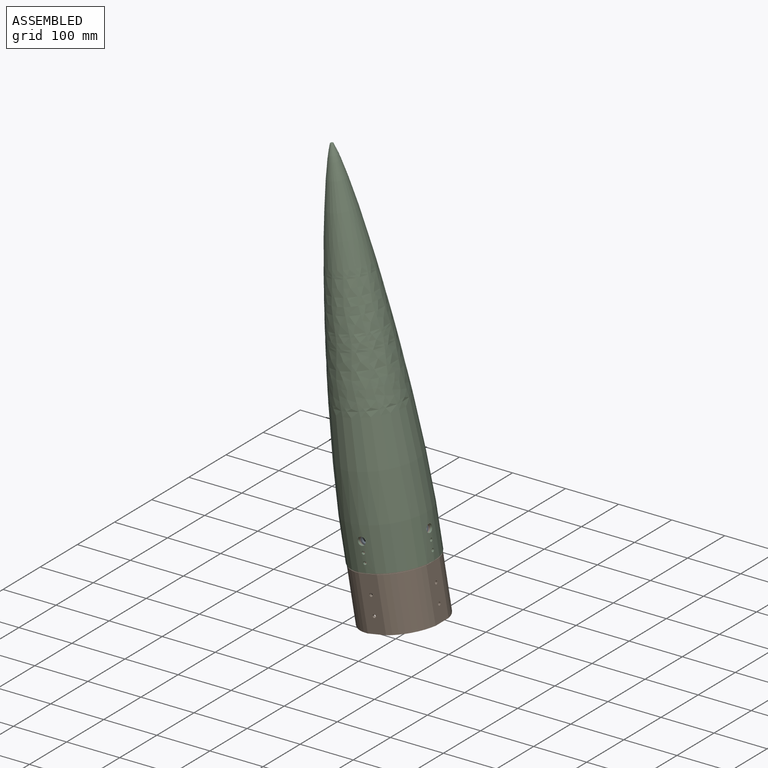
[diagram: assembled view]
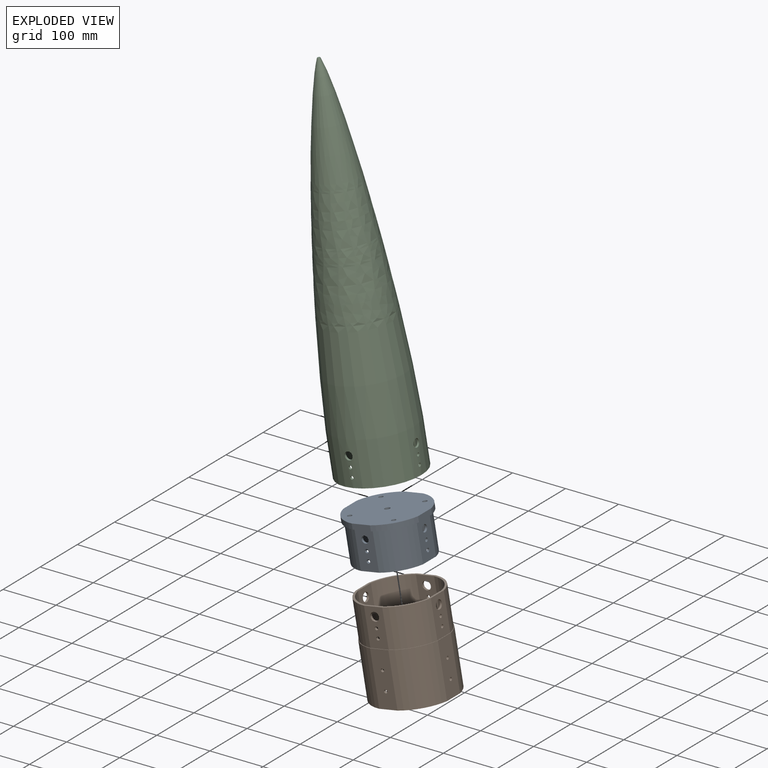
[diagram: exploded view]
GUIDED TOUR — MATED ASSEMBLY (Onshape document a5609bb99c2f86ce3860eae0, AutoMate assembly a5609bb99c2f86ce3860eae0_748a4be2e3e44bce40b3e78f_60d7f2d63493310a3a7e5489_default)

This assembly has 3 components, labeled P0..P2 below (a component is one placed occurrence of a part; the same part can appear more than once), held together by 2 mates. A mate is a constraint between two components; its type names the relative motion it leaves free:
  SLIDER — leaves translation along the listed axis free.
Axis/direction vectors are unit vectors and 'through' points are millimeter coordinates, both in the assembly's world frame.

MATES
  1. SLIDER "Slider 1": P0 <-> P1, axis (-0.174, 0.000, 0.985) through (117.21, 10.17, -79.64) mm
  2. SLIDER "Slider 2": P2 <-> P0, axis (0.174, 0.000, -0.985) through (130.97, 10.17, -157.64) mm

ASSEMBLY ORDER
  1. P0 — the base component [order heuristic]
  2. P1 [order heuristic]
  3. P2 [order heuristic]
Order-tag legend:
  [order heuristic] — this assembly is geometrically interlocked (no collision-free removal order exists), so components are listed in mate-graph order; insertion feasibility is not verified.

Of the 3 components, 2 carry the full construction recipe — the FeatureScript program that regenerates the part's solid from scratch; the rest are supplied as boundary geometry only.
Each toured component is shown spotlighted twice — in the assembled view, then in the exploded view, where a leader line traces a displaced component back to its assembled socket (saturated green if recipe-attached, orange if geometry-only; every other component desaturated gray) — followed by its recipe or geometry summary and the mates that hold it.
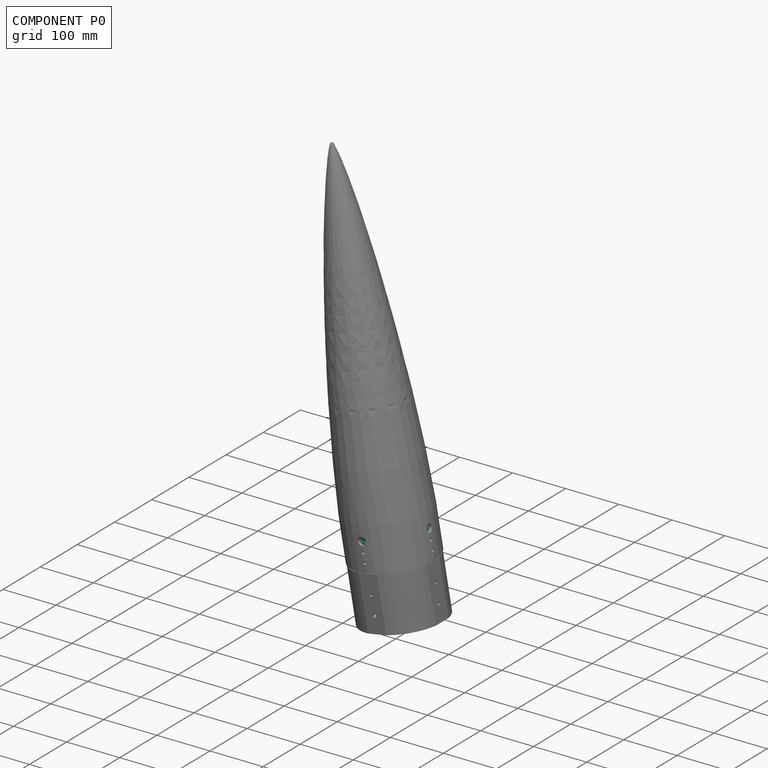
[diagram: component P0 — assembled]
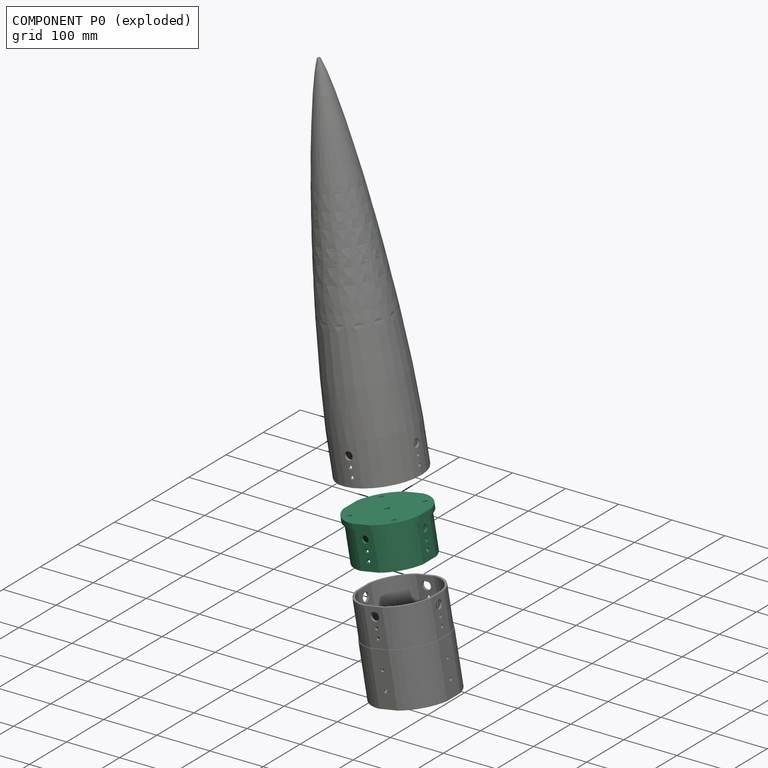
[diagram: component P0 — exploded]
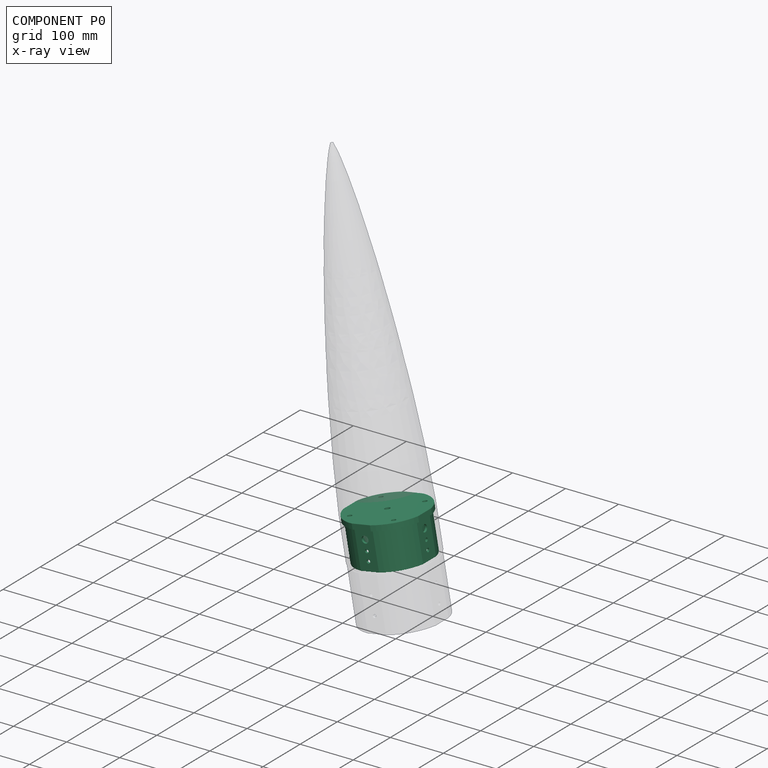
[diagram: component P0 — x-ray view]
COMPONENT P0 — recipe-attached (CADFS 00817923, mesh-verified: the recipe's output STEP matches this component's geometry to below the mesh-comparison resolution (tessellation chordal tolerance ~0.326 mm)).
Held by: SLIDER mate "Slider 1" to P1; SLIDER mate "Slider 2" to P2.
Construction recipe (FeatureScript — the CAD program that rebuilds this solid; sketch coordinates are in the units given by the * unit suffixes, e.g. mm):

FeatureScript 1511;
import(path : "onshape/std/geometry.fs", version : "1511.0");
import(path : "onshape/std/common.fs", version : "1511.0");
const mm = millimeter;
const VERTEX = EntityType.VERTEX;
const EDGE = EntityType.EDGE;
const FACE = EntityType.FACE;
const BODY = EntityType.BODY;
function v(x, y){return vector(x, y);}
function OD(order){return orderDisambiguation(order);}
function OSD(set){return originalSetDisambiguation(set);}
function TD(topology){return topologyDisambiguation(topology);}
function TDD(query){return trueDependencyDisambiguation(query);}
function sQuery(a, b, c) {return sketchEntityQuery(a, b, c);}

annotation { "Feature Type Name" : "Feature", "Feature Type Description" : "" }
export const myFeature = defineFeature(function(context is Context, id is Id, definition is map)
    precondition{}
    {
        {
            var Q0;
            Q0=qCreatedBy(makeId("Top.planeOp"),FACE);
            var sketch = newSketch(context, id + "F0", { "sketchPlane" : qUnion([Q0])});
            skArc(sketch, "E0", {"start": v(-17.5, 66.74) * mm, "mid": v(-48.8, 48.8) * mm, "end": v(-66.74, 17.5) * mm});
            skArc(sketch, "E1", {"start": v(-66.74, -17.5) * mm, "mid": v(-48.8, -48.8) * mm, "end": v(-17.5, -66.74) * mm});
            skArc(sketch, "E2", {"start": v(17.5, -66.74) * mm, "mid": v(48.8, -48.8) * mm, "end": v(66.74, -17.5) * mm});
            skArc(sketch, "E3", {"start": v(66.74, 17.5) * mm, "mid": v(48.8, 48.8) * mm, "end": v(17.5, 66.74) * mm});
            skLineSegment(sketch, "E4", {"start": v(-66.74, 17.5) * mm, "end": v(-66.74, -17.5) * mm});
            skLineSegment(sketch, "E5", {"start": v(-17.5, 66.74) * mm, "end": v(17.5, 66.74) * mm});
            skLineSegment(sketch, "E6", {"start": v(66.74, 17.5) * mm, "end": v(66.74, -17.5) * mm});
            skLineSegment(sketch, "E7", {"start": v(-17.5, -66.74) * mm, "end": v(17.5, -66.74) * mm});
            skArc(sketch, "E8", {"start": v(-17.5, 62.6) * mm, "mid": v(-45.96, 45.96) * mm, "end": v(-62.6, 17.5) * mm});
            skArc(sketch, "E9", {"start": v(-62.6, -17.5) * mm, "mid": v(-45.96, -45.96) * mm, "end": v(-17.5, -62.6) * mm});
            skArc(sketch, "E10", {"start": v(17.5, -62.6) * mm, "mid": v(45.96, -45.96) * mm, "end": v(62.6, -17.5) * mm});
            skArc(sketch, "E11", {"start": v(62.6, 17.5) * mm, "mid": v(45.96, 45.96) * mm, "end": v(17.5, 62.6) * mm});
            skLineSegment(sketch, "E12", {"start": v(-17.5, 62.6) * mm, "end": v(17.5, 62.6) * mm});
            skLineSegment(sketch, "E13", {"start": v(-62.6, 17.5) * mm, "end": v(-62.6, -17.5) * mm});
            skLineSegment(sketch, "E14", {"start": v(-17.5, -62.6) * mm, "end": v(17.5, -62.6) * mm});
            skLineSegment(sketch, "E15", {"start": v(62.6, -17.5) * mm, "end": v(62.6, 17.5) * mm});
            skSolve(sketch);
        }
        {
            var Q0;
            Q0 = qSketchRegion(id + "F0", true);
            extrude(context, id + "F1", {"entities" : qUnion([Q0]), "depth" : 70 * mm, "offsetDistance" : 25 * mm});
        }
        {
            var Q0;
            Q0=makeQuery(id+"F1.opExtrude","CAP_FACE",FACE,{"disambiguationData":[OSD([sQuery(id+"F0.wireOp",EDGE,"E0"),sQuery(id+"F0.wireOp",EDGE,"E1"),sQuery(id+"F0.wireOp",EDGE,"E2"),sQuery(id+"F0.wireOp",EDGE,"E3"),sQuery(id+"F0.wireOp",EDGE,"E4"),sQuery(id+"F0.wireOp",EDGE,"E5"),sQuery(id+"F0.wireOp",EDGE,"E6"),sQuery(id+"F0.wireOp",EDGE,"E7"),sQuery(id+"F0.wireOp",EDGE,"E8"),sQuery(id+"F0.wireOp",EDGE,"E9"),sQuery(id+"F0.wireOp",EDGE,"E10"),sQuery(id+"F0.wireOp",EDGE,"E11"),sQuery(id+"F0.wireOp",EDGE,"E12"),sQuery(id+"F0.wireOp",EDGE,"E13"),sQuery(id+"F0.wireOp",EDGE,"E14"),sQuery(id+"F0.wireOp",EDGE,"E15")])],"isStart":false});
            var sketch = newSketch(context, id + "F2", { "sketchPlane" : qUnion([Q0])});
            skArc(sketch, "E16", {"start": v(-17.5, 71.39) * mm, "mid": v(-51.97, 51.97) * mm, "end": v(-71.39, 17.5) * mm});
            skArc(sketch, "E17", {"start": v(-71.39, -17.5) * mm, "mid": v(-51.97, -51.97) * mm, "end": v(-17.5, -71.39) * mm});
            skArc(sketch, "E18", {"start": v(17.5, -71.39) * mm, "mid": v(51.97, -51.97) * mm, "end": v(71.39, -17.5) * mm});
            skArc(sketch, "E19", {"start": v(71.39, 17.5) * mm, "mid": v(51.97, 51.97) * mm, "end": v(17.5, 71.39) * mm});
            skLineSegment(sketch, "E20", {"start": v(-71.39, 17.5) * mm, "end": v(-71.39, -17.5) * mm});
            skLineSegment(sketch, "E21", {"start": v(-17.5, 71.39) * mm, "end": v(17.5, 71.39) * mm});
            skLineSegment(sketch, "E22", {"start": v(71.39, 17.5) * mm, "end": v(71.39, -17.5) * mm});
            skLineSegment(sketch, "E23", {"start": v(-17.5, -71.39) * mm, "end": v(17.5, -71.39) * mm});
            skSolve(sketch);
        }
        {
            var Q0;
            Q0 = qSketchRegion(id + "F2", true);
            extrude(context, id + "F3", {"entities" : qUnion([Q0]), "operationType" : NewBodyOperationType.ADD, "depth" : 10 * mm, "offsetDistance" : 25 * mm});
        }
        {
            var Q0;
            Q0=makeQuery(id+"F1.opExtrude","SWEPT_FACE",FACE,{"disambiguationData":[OSD([sQuery(id+"F0.wireOp",EDGE,"E7")])]});
            var sketch = newSketch(context, id + "F4", { "sketchPlane" : qUnion([Q0])});
            skCircle(sketch, "E24", {"center": v(0, 53) * mm, "radius": 6.5 * mm});
            skCircle(sketch, "E25", {"center": v(0, 34) * mm, "radius": 3.35 * mm});
            skCircle(sketch, "E26", {"center": v(0, 17) * mm, "radius": 3.35 * mm});
            skSolve(sketch);
        }
        {
            var Q0;
            Q0 = qSketchRegion(id + "F4", true);
            extrude(context, id + "F5", {"entities" : qUnion([Q0]), "operationType" : NewBodyOperationType.REMOVE, "endBound" : BoundingType.UP_TO_NEXT, "oppositeDirection" : true, "depth" : 25 * mm, "offsetDistance" : 25 * mm});
        }
        {
            var Q0;
            Q0=makeQuery(id+"F1.opExtrude","SWEPT_FACE",FACE,{"disambiguationData":[OSD([sQuery(id+"F0.wireOp",EDGE,"E6")])]});
            var sketch = newSketch(context, id + "F6", { "sketchPlane" : qUnion([Q0])});
            skCircle(sketch, "E27", {"center": v(0, 53) * mm, "radius": 6.5 * mm});
            skCircle(sketch, "E28", {"center": v(0, 34) * mm, "radius": 3.35 * mm});
            skCircle(sketch, "E29", {"center": v(0, 17) * mm, "radius": 3.35 * mm});
            skSolve(sketch);
        }
        {
            var Q0;
            Q0 = qSketchRegion(id + "F6", true);
            extrude(context, id + "F7", {"entities" : qUnion([Q0]), "operationType" : NewBodyOperationType.REMOVE, "endBound" : BoundingType.UP_TO_NEXT, "oppositeDirection" : true, "depth" : 25 * mm, "offsetDistance" : 25 * mm});
        }
        {
            var Q0;
            Q0=makeQuery(id+"F1.opExtrude","SWEPT_FACE",FACE,{"disambiguationData":[OSD([sQuery(id+"F0.wireOp",EDGE,"E5")])]});
            var sketch = newSketch(context, id + "F8", { "sketchPlane" : qUnion([Q0])});
            skCircle(sketch, "E30", {"center": v(0, 53) * mm, "radius": 6.5 * mm});
            skCircle(sketch, "E31", {"center": v(0, 34) * mm, "radius": 3.35 * mm});
            skCircle(sketch, "E32", {"center": v(0, 17) * mm, "radius": 3.35 * mm});
            skSolve(sketch);
        }
        {
            var Q0;
            Q0 = qSketchRegion(id + "F8", true);
            extrude(context, id + "F9", {"entities" : qUnion([Q0]), "operationType" : NewBodyOperationType.REMOVE, "endBound" : BoundingType.UP_TO_NEXT, "oppositeDirection" : true, "depth" : 25 * mm, "offsetDistance" : 25 * mm});
        }
        {
            var Q0;
            Q0=makeQuery(id+"F1.opExtrude","SWEPT_FACE",FACE,{"disambiguationData":[OSD([sQuery(id+"F0.wireOp",EDGE,"E4")])]});
            var sketch = newSketch(context, id + "F10", { "sketchPlane" : qUnion([Q0])});
            skCircle(sketch, "E33", {"center": v(0, 53) * mm, "radius": 6.5 * mm});
            skCircle(sketch, "E34", {"center": v(0, 34) * mm, "radius": 3.35 * mm});
            skCircle(sketch, "E35", {"center": v(0, 17) * mm, "radius": 3.35 * mm});
            skSolve(sketch);
        }
        {
            var Q0;
            Q0 = qSketchRegion(id + "F10", true);
            extrude(context, id + "F11", {"entities" : qUnion([Q0]), "operationType" : NewBodyOperationType.REMOVE, "endBound" : BoundingType.UP_TO_NEXT, "oppositeDirection" : true, "depth" : 25 * mm, "offsetDistance" : 25 * mm});
        }
        {
            var Q0;
            Q0=makeQuery(id+"F3.opExtrude","CAP_FACE",FACE,{"disambiguationData":[OSD([sQuery(id+"F2.wireOp",EDGE,"E16"),sQuery(id+"F2.wireOp",EDGE,"E17"),sQuery(id+"F2.wireOp",EDGE,"E18"),sQuery(id+"F2.wireOp",EDGE,"E19"),sQuery(id+"F2.wireOp",EDGE,"E20"),sQuery(id+"F2.wireOp",EDGE,"E21"),sQuery(id+"F2.wireOp",EDGE,"E22"),sQuery(id+"F2.wireOp",EDGE,"E23")])],"isStart":false});
            var sketch = newSketch(context, id + "F12", { "sketchPlane" : qUnion([Q0])});
            skCircle(sketch, "E36", {"center": v(0, 0) * mm, "radius": 5 * mm});
            skCircle(sketch, "E37", {"center": v(-42, 42) * mm, "radius": 4.1 * mm});
            skCircle(sketch, "E38", {"center": v(42, 42) * mm, "radius": 4.1 * mm});
            skCircle(sketch, "E39", {"center": v(42, -42) * mm, "radius": 4.1 * mm});
            skCircle(sketch, "E40", {"center": v(-42, -42) * mm, "radius": 4.1 * mm});
            skSolve(sketch);
        }
        {
            var Q0;
            Q0 = qSketchRegion(id + "F12", true);
            var Q1;
            Q1=makeQuery(id+"F3.boolean.opBoolean","SPLIT",FACE,{"disambiguationData":[TD([makeQuery(id+"F1.opExtrude","SWEPT_FACE",FACE,{"disambiguationData":[OSD([sQuery(id+"F0.wireOp",EDGE,"E8")])]})])],"derivedFrom":makeQuery(id+"F3.opExtrude","CAP_FACE",FACE,{"disambiguationData":[OSD([sQuery(id+"F2.wireOp",EDGE,"E16"),sQuery(id+"F2.wireOp",EDGE,"E17"),sQuery(id+"F2.wireOp",EDGE,"E18"),sQuery(id+"F2.wireOp",EDGE,"E19"),sQuery(id+"F2.wireOp",EDGE,"E20"),sQuery(id+"F2.wireOp",EDGE,"E21"),sQuery(id+"F2.wireOp",EDGE,"E22"),sQuery(id+"F2.wireOp",EDGE,"E23")])],"isStart":true})});
            extrude(context, id + "F13", {"entities" : qUnion([Q0]), "operationType" : NewBodyOperationType.REMOVE, "endBound" : BoundingType.UP_TO_SURFACE, "oppositeDirection" : true, "depth" : 25 * mm, "endBoundEntityFace" : qUnion([Q1]), "offsetDistance" : 25 * mm});
        }
    });
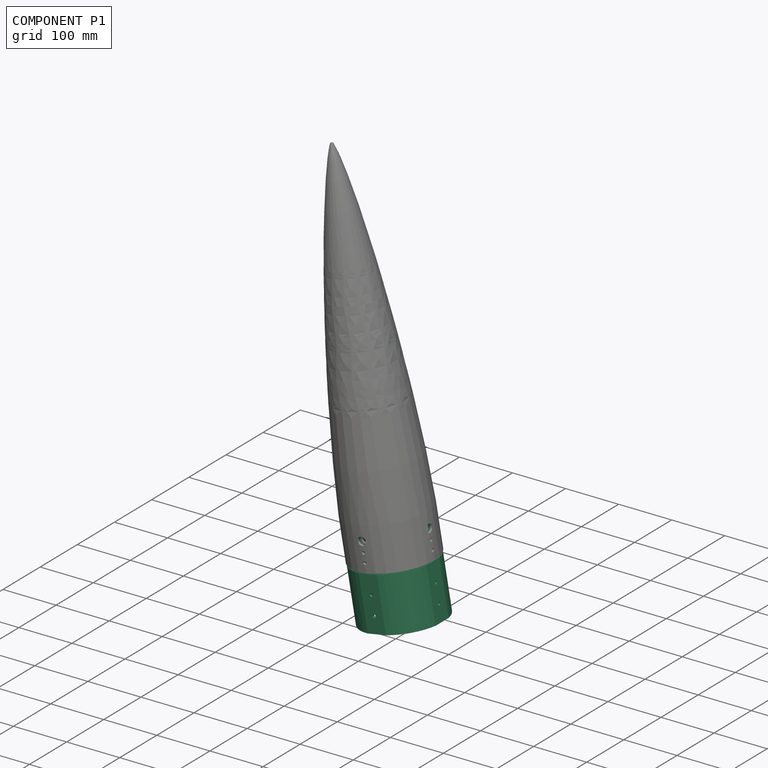
[diagram: component P1 — assembled]
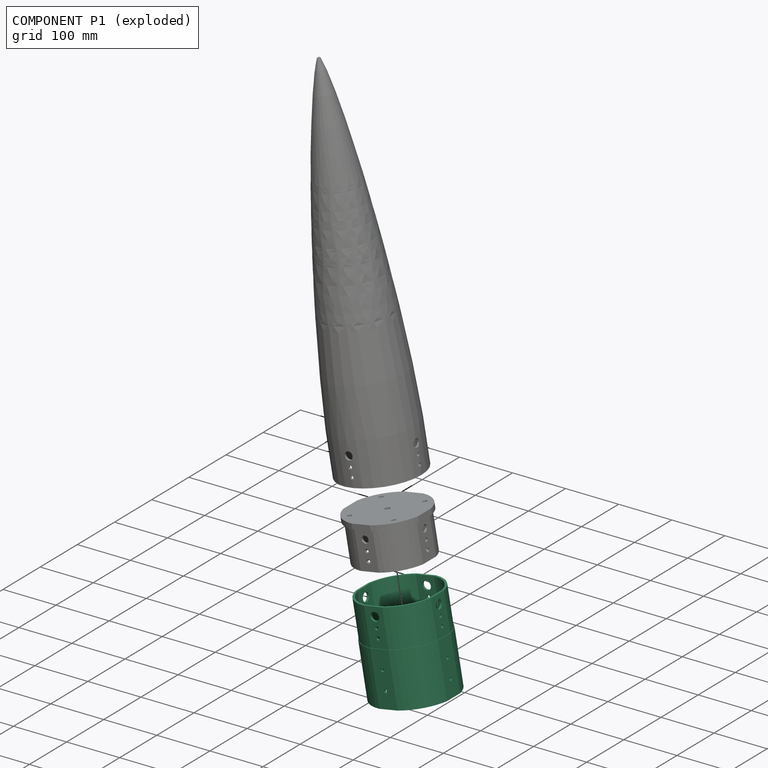
[diagram: component P1 — exploded]
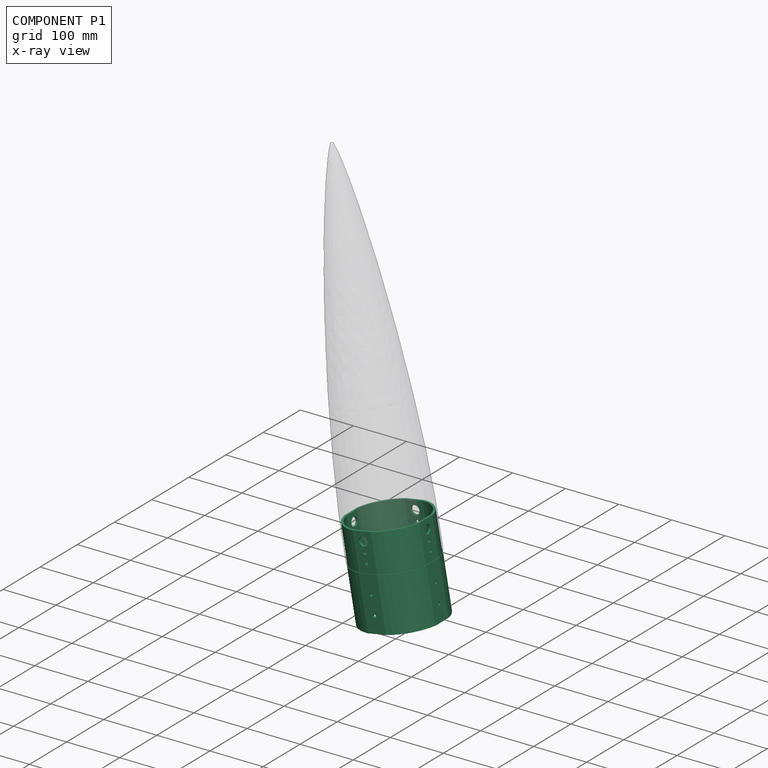
[diagram: component P1 — x-ray view]
COMPONENT P1 — recipe-attached (CADFS 00811272, mesh-verified: the recipe's output STEP matches this component's geometry to below the mesh-comparison resolution (tessellation chordal tolerance ~0.401 mm)).
Held by: SLIDER mate "Slider 1" to P0.
Construction recipe (FeatureScript — the CAD program that rebuilds this solid; sketch coordinates are in the units given by the * unit suffixes, e.g. mm):

FeatureScript 1511;
import(path : "onshape/std/geometry.fs", version : "1511.0");
import(path : "onshape/std/common.fs", version : "1511.0");
const mm = millimeter;
const VERTEX = EntityType.VERTEX;
const EDGE = EntityType.EDGE;
const FACE = EntityType.FACE;
const BODY = EntityType.BODY;
function v(x, y){return vector(x, y);}
function OD(order){return orderDisambiguation(order);}
function OSD(set){return originalSetDisambiguation(set);}
function TD(topology){return topologyDisambiguation(topology);}
function TDD(query){return trueDependencyDisambiguation(query);}
function sQuery(a, b, c) {return sketchEntityQuery(a, b, c);}

annotation { "Feature Type Name" : "Feature", "Feature Type Description" : "" }
export const myFeature = defineFeature(function(context is Context, id is Id, definition is map)
    precondition{}
    {
        {
            var Q0;
            Q0=qCreatedBy(makeId("Top.planeOp"),FACE);
            var sketch = newSketch(context, id + "F0", { "sketchPlane" : qUnion([Q0])});
            skArc(sketch, "E0", {"start": v(-17.5, 72.93) * mm, "mid": v(-53.03, 53.03) * mm, "end": v(-72.93, 17.5) * mm});
            skArc(sketch, "E1", {"start": v(-72.93, -17.5) * mm, "mid": v(-53.03, -53.03) * mm, "end": v(-17.5, -72.93) * mm});
            skArc(sketch, "E2", {"start": v(17.5, -72.93) * mm, "mid": v(53.03, -53.03) * mm, "end": v(72.93, -17.5) * mm});
            skArc(sketch, "E3", {"start": v(72.93, 17.5) * mm, "mid": v(53.03, 53.03) * mm, "end": v(17.5, 72.93) * mm});
            skLineSegment(sketch, "E4", {"start": v(-72.93, 17.5) * mm, "end": v(-72.93, -17.5) * mm});
            skLineSegment(sketch, "E5", {"start": v(-17.5, 72.93) * mm, "end": v(17.5, 72.93) * mm});
            skLineSegment(sketch, "E6", {"start": v(72.93, 17.5) * mm, "end": v(72.93, -17.5) * mm});
            skLineSegment(sketch, "E7", {"start": v(-17.5, -72.93) * mm, "end": v(17.5, -72.93) * mm});
            skArc(sketch, "E8", {"start": v(-17.5, 67.78) * mm, "mid": v(-49.5, 49.5) * mm, "end": v(-67.78, 17.5) * mm});
            skArc(sketch, "E9", {"start": v(-67.78, -17.5) * mm, "mid": v(-49.5, -49.5) * mm, "end": v(-17.5, -67.78) * mm});
            skArc(sketch, "E10", {"start": v(17.5, -67.78) * mm, "mid": v(49.5, -49.5) * mm, "end": v(67.78, -17.5) * mm});
            skArc(sketch, "E11", {"start": v(67.78, 17.5) * mm, "mid": v(49.5, 49.5) * mm, "end": v(17.5, 67.78) * mm});
            skLineSegment(sketch, "E12", {"start": v(-17.5, 67.78) * mm, "end": v(17.5, 67.78) * mm});
            skLineSegment(sketch, "E13", {"start": v(-67.78, 17.5) * mm, "end": v(-67.78, -17.5) * mm});
            skLineSegment(sketch, "E14", {"start": v(-17.5, -67.78) * mm, "end": v(17.5, -67.78) * mm});
            skLineSegment(sketch, "E15", {"start": v(67.78, -17.5) * mm, "end": v(67.78, 17.5) * mm});
            skSolve(sketch);
        }
        {
            var Q0;
            Q0 = qSketchRegion(id + "F0", true);
            extrude(context, id + "F1", {"entities" : qUnion([Q0]), "depth" : 100 * mm, "offsetDistance" : 25 * mm});
        }
        {
            var Q0;
            Q0=makeQuery(id+"F1.opExtrude","CAP_FACE",FACE,{"disambiguationData":[OSD([sQuery(id+"F0.wireOp",EDGE,"E0"),sQuery(id+"F0.wireOp",EDGE,"E1"),sQuery(id+"F0.wireOp",EDGE,"E2"),sQuery(id+"F0.wireOp",EDGE,"E3"),sQuery(id+"F0.wireOp",EDGE,"E4"),sQuery(id+"F0.wireOp",EDGE,"E5"),sQuery(id+"F0.wireOp",EDGE,"E6"),sQuery(id+"F0.wireOp",EDGE,"E7"),sQuery(id+"F0.wireOp",EDGE,"E8"),sQuery(id+"F0.wireOp",EDGE,"E9"),sQuery(id+"F0.wireOp",EDGE,"E10"),sQuery(id+"F0.wireOp",EDGE,"E11"),sQuery(id+"F0.wireOp",EDGE,"E12"),sQuery(id+"F0.wireOp",EDGE,"E13"),sQuery(id+"F0.wireOp",EDGE,"E14"),sQuery(id+"F0.wireOp",EDGE,"E15")])],"isStart":false});
            var sketch = newSketch(context, id + "F2", { "sketchPlane" : qUnion([Q0])});
            skArc(sketch, "E16.0", {"start": v(-17.5, 67.78) * mm, "mid": v(-49.5, 49.5) * mm, "end": v(-67.78, 17.5) * mm});
            skLineSegment(sketch, "E16.1", {"start": v(-67.78, 17.5) * mm, "end": v(-67.78, -17.5) * mm});
            skArc(sketch, "E16.2", {"start": v(-67.78, -17.5) * mm, "mid": v(-49.5, -49.5) * mm, "end": v(-17.5, -67.78) * mm});
            skLineSegment(sketch, "E16.3", {"start": v(-17.5, -67.78) * mm, "end": v(17.5, -67.78) * mm});
            skArc(sketch, "E16.4", {"start": v(17.5, -67.78) * mm, "mid": v(49.5, -49.5) * mm, "end": v(67.78, -17.5) * mm});
            skLineSegment(sketch, "E16.5", {"start": v(67.78, -17.5) * mm, "end": v(67.78, 17.5) * mm});
            skArc(sketch, "E16.6", {"start": v(67.78, 17.5) * mm, "mid": v(49.5, 49.5) * mm, "end": v(17.5, 67.78) * mm});
            skLineSegment(sketch, "E16.7", {"start": v(-17.5, 67.78) * mm, "end": v(17.5, 67.78) * mm});
            skArc(sketch, "E17", {"start": v(-17.5, 71.9) * mm, "mid": v(-52.33, 52.33) * mm, "end": v(-71.9, 17.5) * mm});
            skArc(sketch, "E18", {"start": v(71.9, 17.5) * mm, "mid": v(52.33, 52.33) * mm, "end": v(17.5, 71.9) * mm});
            skLineSegment(sketch, "E19", {"start": v(-71.9, 17.5) * mm, "end": v(-71.9, -17.5) * mm});
            skLineSegment(sketch, "E20", {"start": v(-17.5, 71.9) * mm, "end": v(17.5, 71.9) * mm});
            skPoint(sketch, "E21.start.orphan", {"position": v(26, -67.78) * mm});
            skLineSegment(sketch, "E22", {"start": v(71.9, 17.5) * mm, "end": v(71.9, -17.5) * mm});
            skArc(sketch, "E23", {"start": v(-71.9, -17.5) * mm, "mid": v(-52.33, -52.33) * mm, "end": v(-17.5, -71.9) * mm});
            skArc(sketch, "E24", {"start": v(71.9, -17.5) * mm, "mid": v(52.33, -52.33) * mm, "end": v(17.5, -71.9) * mm});
            skLineSegment(sketch, "E25", {"start": v(-17.5, -71.9) * mm, "end": v(17.5, -71.9) * mm});
            skSolve(sketch);
        }
        {
            var Q0;
            Q0 = qSketchRegion(id + "F2", true);
            extrude(context, id + "F3", {"entities" : qUnion([Q0]), "operationType" : NewBodyOperationType.ADD, "depth" : 70 * mm, "offsetDistance" : 25 * mm});
        }
        {
            var Q0;
            Q0=makeQuery(id+"F3.opExtrude","SWEPT_FACE",FACE,{"disambiguationData":[OSD([sQuery(id+"F2.wireOp",EDGE,"E25")])]});
            var sketch = newSketch(context, id + "F4", { "sketchPlane" : qUnion([Q0])});
            skCircle(sketch, "E26", {"center": v(0, 153) * mm, "radius": 8.1 * mm});
            skCircle(sketch, "E27", {"center": v(0, 134) * mm, "radius": 3.1 * mm});
            skCircle(sketch, "E28", {"center": v(0, 117) * mm, "radius": 3.1 * mm});
            skSolve(sketch);
        }
        {
            var Q0;
            Q0 = qSketchRegion(id + "F4", true);
            var Q1;
            Q1=makeQuery(id+"F3.boolean.opBoolean","MERGE",FACE,{"derivedFrom":[makeQuery(id+"F1.opExtrude","SWEPT_FACE",FACE,{"disambiguationData":[OSD([sQuery(id+"F0.wireOp",EDGE,"E14")])]}),makeQuery(id+"F3.opExtrude","SWEPT_FACE",FACE,{"disambiguationData":[OSD([sQuery(id+"F2.wireOp",EDGE,"E16.3")])]})]});
            extrude(context, id + "F5", {"entities" : qUnion([Q0]), "operationType" : NewBodyOperationType.REMOVE, "endBound" : BoundingType.UP_TO_SURFACE, "oppositeDirection" : true, "depth" : 25 * mm, "endBoundEntityFace" : qUnion([Q1]), "offsetDistance" : 25 * mm});
        }
        {
            var Q0;
            Q0=makeQuery(id+"F3.opExtrude","SWEPT_FACE",FACE,{"disambiguationData":[OSD([sQuery(id+"F2.wireOp",EDGE,"E22")])]});
            var sketch = newSketch(context, id + "F6", { "sketchPlane" : qUnion([Q0])});
            skCircle(sketch, "E29", {"center": v(0, 153) * mm, "radius": 8.1 * mm});
            skCircle(sketch, "E30", {"center": v(0, 134) * mm, "radius": 3.1 * mm});
            skCircle(sketch, "E31", {"center": v(0, 117) * mm, "radius": 3.1 * mm});
            skSolve(sketch);
        }
        {
            var Q0;
            Q0 = qSketchRegion(id + "F6", true);
            var Q1;
            Q1=makeQuery(id+"F3.boolean.opBoolean","MERGE",FACE,{"derivedFrom":[makeQuery(id+"F1.opExtrude","SWEPT_FACE",FACE,{"disambiguationData":[OSD([sQuery(id+"F0.wireOp",EDGE,"E15")])]}),makeQuery(id+"F3.opExtrude","SWEPT_FACE",FACE,{"disambiguationData":[OSD([sQuery(id+"F2.wireOp",EDGE,"E16.5")])]})]});
            extrude(context, id + "F7", {"entities" : qUnion([Q0]), "operationType" : NewBodyOperationType.REMOVE, "endBound" : BoundingType.UP_TO_SURFACE, "oppositeDirection" : true, "depth" : 25 * mm, "endBoundEntityFace" : qUnion([Q1]), "offsetDistance" : 25 * mm});
        }
        {
            var Q0;
            Q0=makeQuery(id+"F3.opExtrude","SWEPT_FACE",FACE,{"disambiguationData":[OSD([sQuery(id+"F2.wireOp",EDGE,"E20")])]});
            var sketch = newSketch(context, id + "F8", { "sketchPlane" : qUnion([Q0])});
            skCircle(sketch, "E32", {"center": v(0, 153) * mm, "radius": 8.1 * mm});
            skCircle(sketch, "E33", {"center": v(0, 134) * mm, "radius": 3.1 * mm});
            skCircle(sketch, "E34", {"center": v(0, 117) * mm, "radius": 3.1 * mm});
            skSolve(sketch);
        }
        {
            var Q0;
            Q0 = qSketchRegion(id + "F8", true);
            var Q1;
            Q1=makeQuery(id+"F3.boolean.opBoolean","MERGE",FACE,{"derivedFrom":[makeQuery(id+"F1.opExtrude","SWEPT_FACE",FACE,{"disambiguationData":[OSD([sQuery(id+"F0.wireOp",EDGE,"E12")])]}),makeQuery(id+"F3.opExtrude","SWEPT_FACE",FACE,{"disambiguationData":[OSD([sQuery(id+"F2.wireOp",EDGE,"E16.7")])]})]});
            extrude(context, id + "F9", {"entities" : qUnion([Q0]), "operationType" : NewBodyOperationType.REMOVE, "endBound" : BoundingType.UP_TO_SURFACE, "oppositeDirection" : true, "depth" : 25 * mm, "endBoundEntityFace" : qUnion([Q1]), "offsetDistance" : 25 * mm});
        }
        {
            var Q0;
            Q0=makeQuery(id+"F3.opExtrude","SWEPT_FACE",FACE,{"disambiguationData":[OSD([sQuery(id+"F2.wireOp",EDGE,"E19")])]});
            var sketch = newSketch(context, id + "F10", { "sketchPlane" : qUnion([Q0])});
            skCircle(sketch, "E35", {"center": v(0, 153) * mm, "radius": 8.1 * mm});
            skCircle(sketch, "E36", {"center": v(0, 134) * mm, "radius": 3.1 * mm});
            skCircle(sketch, "E37", {"center": v(0, 117) * mm, "radius": 3.1 * mm});
            skSolve(sketch);
        }
        {
            var Q0;
            Q0 = qSketchRegion(id + "F10", true);
            extrude(context, id + "F11", {"entities" : qUnion([Q0]), "operationType" : NewBodyOperationType.REMOVE, "endBound" : BoundingType.UP_TO_NEXT, "oppositeDirection" : true, "depth" : 25 * mm, "offsetDistance" : 25 * mm});
        }
        {
            var Q0;
            Q0=makeQuery(id+"F1.opExtrude","SWEPT_FACE",FACE,{"disambiguationData":[OSD([sQuery(id+"F0.wireOp",EDGE,"E6")])]});
            var sketch = newSketch(context, id + "F12", { "sketchPlane" : qUnion([Q0])});
            skCircle(sketch, "E38", {"center": v(0, 65) * mm, "radius": 3.05 * mm});
            skCircle(sketch, "E39", {"center": v(0, 30) * mm, "radius": 3.05 * mm});
            skSolve(sketch);
        }
        {
            var Q0;
            Q0 = qSketchRegion(id + "F12", true);
            extrude(context, id + "F13", {"entities" : qUnion([Q0]), "operationType" : NewBodyOperationType.REMOVE, "endBound" : BoundingType.UP_TO_NEXT, "oppositeDirection" : true, "depth" : 25 * mm, "offsetDistance" : 25 * mm});
        }
        {
            var Q0;
            Q0=makeQuery(id+"F1.opExtrude","SWEPT_FACE",FACE,{"disambiguationData":[OSD([sQuery(id+"F0.wireOp",EDGE,"E7")])]});
            var sketch = newSketch(context, id + "F14", { "sketchPlane" : qUnion([Q0])});
            skCircle(sketch, "E40", {"center": v(0, 65) * mm, "radius": 3.05 * mm});
            skCircle(sketch, "E41", {"center": v(0, 30) * mm, "radius": 3.05 * mm});
            skSolve(sketch);
        }
        {
            var Q0;
            Q0 = qSketchRegion(id + "F14", true);
            extrude(context, id + "F15", {"entities" : qUnion([Q0]), "operationType" : NewBodyOperationType.REMOVE, "endBound" : BoundingType.UP_TO_NEXT, "oppositeDirection" : true, "depth" : 25 * mm, "offsetDistance" : 25 * mm});
        }
        {
            var Q0;
            Q0=makeQuery(id+"F1.opExtrude","SWEPT_FACE",FACE,{"disambiguationData":[OSD([sQuery(id+"F0.wireOp",EDGE,"E5")])]});
            var sketch = newSketch(context, id + "F16", { "sketchPlane" : qUnion([Q0])});
            skCircle(sketch, "E42", {"center": v(0, 65) * mm, "radius": 3.05 * mm});
            skCircle(sketch, "E43", {"center": v(0, 30) * mm, "radius": 3.05 * mm});
            skSolve(sketch);
        }
        {
            var Q0;
            Q0 = qSketchRegion(id + "F16", true);
            extrude(context, id + "F17", {"entities" : qUnion([Q0]), "operationType" : NewBodyOperationType.REMOVE, "endBound" : BoundingType.UP_TO_NEXT, "oppositeDirection" : true, "depth" : 25 * mm, "offsetDistance" : 25 * mm});
        }
        {
            var Q0;
            Q0=makeQuery(id+"F1.opExtrude","SWEPT_FACE",FACE,{"disambiguationData":[OSD([sQuery(id+"F0.wireOp",EDGE,"E4")])]});
            var sketch = newSketch(context, id + "F18", { "sketchPlane" : qUnion([Q0])});
            skCircle(sketch, "E44", {"center": v(0, 65) * mm, "radius": 3.05 * mm});
            skCircle(sketch, "E45", {"center": v(0, 30) * mm, "radius": 3.05 * mm});
            skSolve(sketch);
        }
        {
            var Q0;
            Q0 = qSketchRegion(id + "F18", true);
            extrude(context, id + "F19", {"entities" : qUnion([Q0]), "operationType" : NewBodyOperationType.REMOVE, "endBound" : BoundingType.UP_TO_NEXT, "oppositeDirection" : true, "depth" : 25 * mm, "offsetDistance" : 25 * mm});
        }
    });
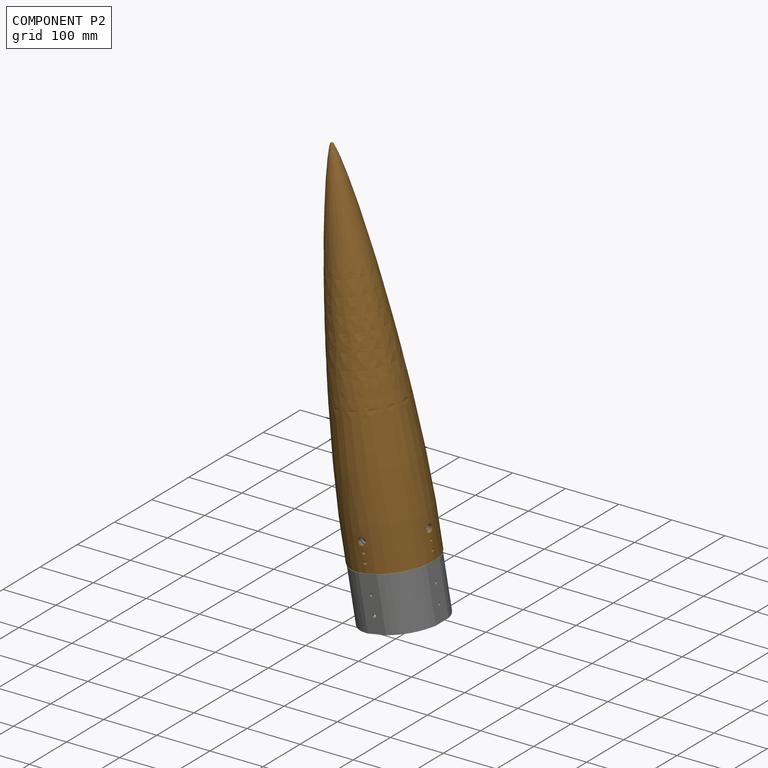
[diagram: component P2 — assembled]
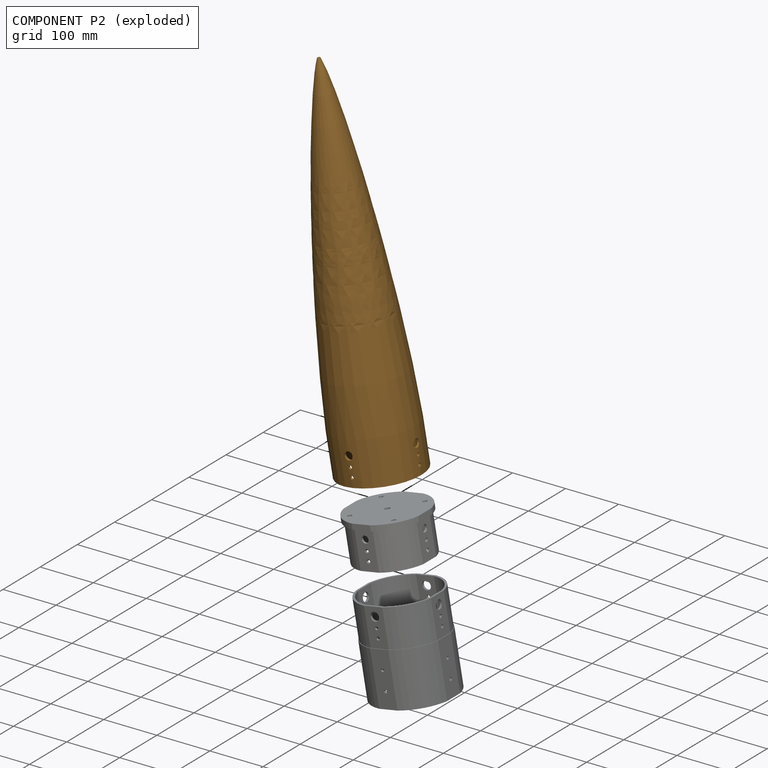
[diagram: component P2 — exploded]
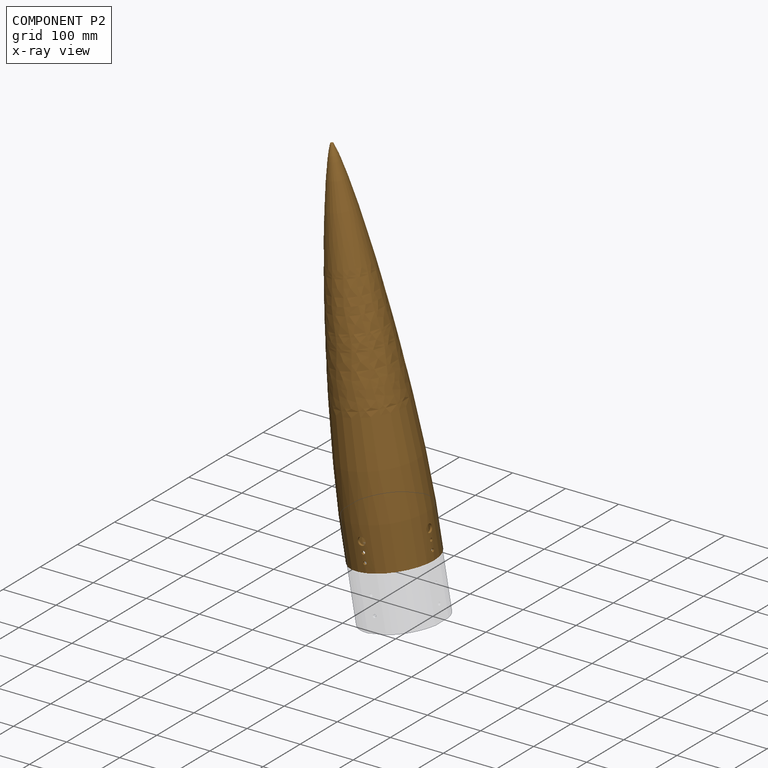
[diagram: component P2 — x-ray view]
COMPONENT P2 — geometry summary (no construction recipe available for this part):
  bounding box: 683.0 x 152.0 x 152.0 mm
  B-rep topology: 1 solid, 30 faces, 188 edges
  volume: 459696 mm^3 (3% of its bounding box)
  symmetry: revolution-symmetric about the x axis through its bounding-box center; mirror-symmetric across its y mid-plane, z mid-plane
Held by: SLIDER mate "Slider 2" to P0.
PROVENANCE & LICENSES
Assembly (occurrences, transforms, mates, per-part STEP geometry): AutoMate dataset, Zenodo record 7776208, CC0.
Construction recipes: CADFS (HuggingFace VladPyatov/CADFS, CC-BY-4.0, layered over the ABC dataset), FeatureScript reconstruction programs keyed by ABC model id.
Join: ABC meta listings map ABC model id -> Onshape documentId; within a shared document, parts are matched by geometric signature (bounding-box dims + volume at 0.1% relative tolerance, exact B-rep face/solid counts).
Verification: 2 of this assembly's 3 components carry a recipe attachment, and every attachment is mesh-verified: the CADFS STEP and the AutoMate member STEP were compared as meshes in their shared local frame (symmetric sampled-point-to-mesh distance); worst across the 2 attachments: below the mesh-comparison resolution (tessellation chordal tolerance ~0.401 mm) on a 267 mm part.
Renders: orthographic iso camera (az 35 / el 25); the floor grid conveys scale (grid pitch printed in each image; no ruler). In the exploded view each component is displaced by its stored offset vector: the offsets alone carry the explosion direction (mate normal/axis signs are not orientation cues and do not encode it), and separation distances are assigned per mate-chain, not proportionally to assembly-order depth.
